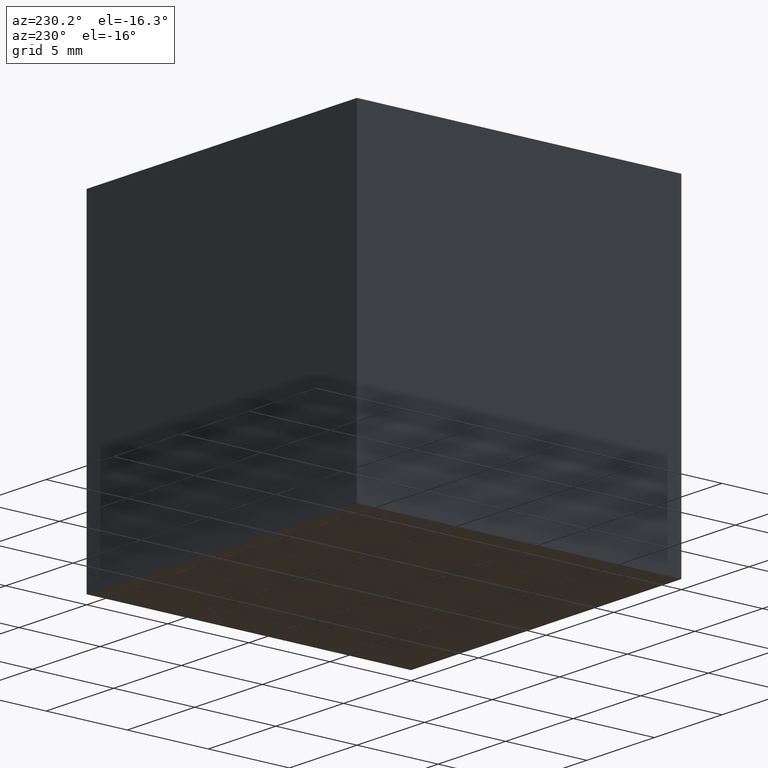
[diagram: clean part render]
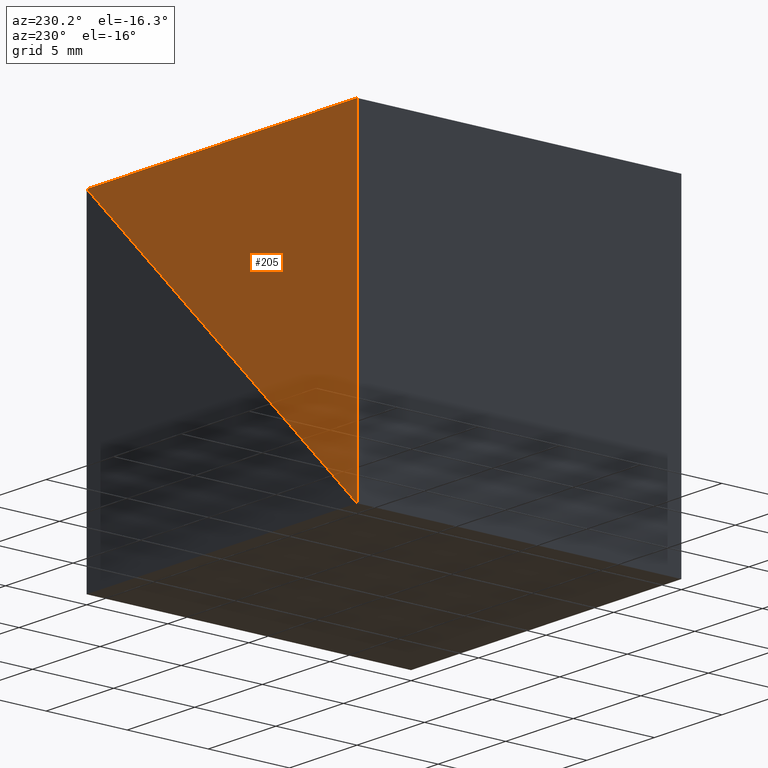
[diagram: same view with one face highlighted and labeled with its STEP entity id]
A machine part, auxiliary view. The second image highlights one B-rep face of the part: STEP entity #205.
In plain terms, the highlighted planar face has unit normal (0, 1, 0).
Its self-contained STEP definition (entity closure, byte-faithful):
#7 = CARTESIAN_POINT ( 'NONE',  ( 0.0000000000000000000, 20.00000000000000000, 0.0000000000000000000 ) ) ;
#14 = ORIENTED_EDGE ( 'NONE', *, *, #192, .F. ) ;
#16 = CARTESIAN_POINT ( 'NONE',  ( 0.0000000000000000000, 20.00000000000000000, 0.0000000000000000000 ) ) ;
#20 = VERTEX_POINT ( 'NONE', #268 ) ;
#36 = VECTOR ( 'NONE', #156, 1000.000000000000000 ) ;
#43 = VECTOR ( 'NONE', #157, 1000.000000000000000 ) ;
#48 = CARTESIAN_POINT ( 'NONE',  ( -20.00000000000000000, 20.00000000000000000, 0.0000000000000000000 ) ) ;
#65 = EDGE_CURVE ( 'NONE', #194, #74, #273, .T. ) ;
#74 = VERTEX_POINT ( 'NONE', #171 ) ;
#81 = DIRECTION ( 'NONE',  ( 0.0000000000000000000, 1.000000000000000000, 0.0000000000000000000 ) ) ;
#127 = ORIENTED_EDGE ( 'NONE', *, *, #145, .F. ) ;
#136 = VECTOR ( 'NONE', #240, 1000.000000000000000 ) ;
#145 = EDGE_CURVE ( 'NONE', #20, #194, #234, .T. ) ;
#156 = DIRECTION ( 'NONE',  ( 0.7071067811865475700, 0.0000000000000000000, 0.7071067811865474600 ) ) ;
#157 = DIRECTION ( 'NONE',  ( -0.0000000000000000000, -0.0000000000000000000, -1.000000000000000000 ) ) ;
#171 = CARTESIAN_POINT ( 'NONE',  ( -20.00000000000000000, 20.00000000000000000, 0.0000000000000000000 ) ) ;
#184 = CARTESIAN_POINT ( 'NONE',  ( -20.00000000000000000, 20.00000000000000000, -19.99999999999999600 ) ) ;
#192 = EDGE_CURVE ( 'NONE', #74, #20, #262, .T. ) ;
#194 = VERTEX_POINT ( 'NONE', #7 ) ;
#203 = AXIS2_PLACEMENT_3D ( 'NONE', #16, #81, #250 ) ;
#205 = ADVANCED_FACE ( 'NONE', ( #290 ), #230, .T. ) ;
#210 = EDGE_LOOP ( 'NONE', ( #127, #14, #246 ) ) ;
#220 = CARTESIAN_POINT ( 'NONE',  ( 0.0000000000000000000, 20.00000000000000000, 0.0000000000000000000 ) ) ;
#230 = PLANE ( 'NONE',  #203 ) ;
#234 = LINE ( 'NONE', #220, #36 ) ;
#240 = DIRECTION ( 'NONE',  ( -1.000000000000000000, -0.0000000000000000000, -0.0000000000000000000 ) ) ;
#246 = ORIENTED_EDGE ( 'NONE', *, *, #65, .F. ) ;
#250 = DIRECTION ( 'NONE',  ( 0.0000000000000000000, -0.0000000000000000000, 1.000000000000000000 ) ) ;
#262 = LINE ( 'NONE', #184, #43 ) ;
#268 = CARTESIAN_POINT ( 'NONE',  ( -20.00000000000000000, 20.00000000000000000, -19.99999999999999600 ) ) ;
#273 = LINE ( 'NONE', #48, #136 ) ;
#290 = FACE_OUTER_BOUND ( 'NONE', #210, .T. ) ;